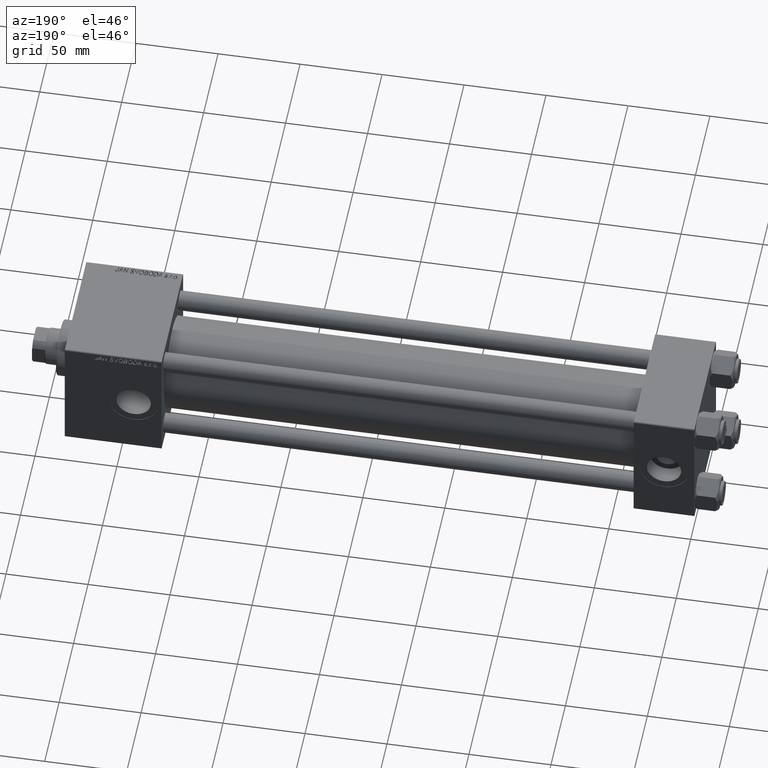
[diagram: clean part render]
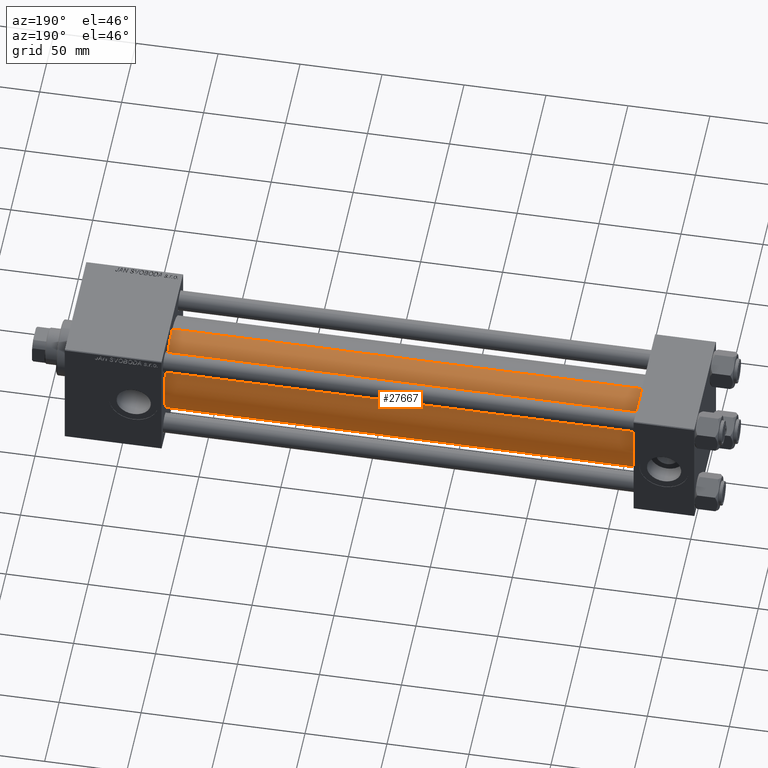
[diagram: same view with one face highlighted and labeled with its STEP entity id]
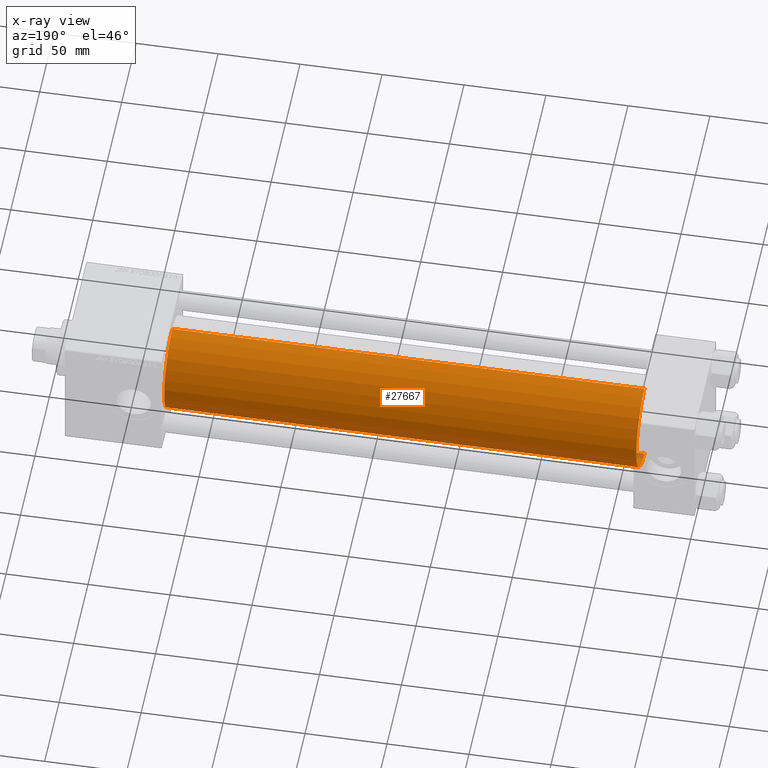
[diagram: x-ray of the same camera — body ghosted, the highlighted face saturated]
A machine part, auxiliary view. The second image highlights one B-rep face of the part: STEP entity #27667.
The next image is the same camera in x-ray: the body ghosted, the highlighted face saturated — about 0% of this face is hidden behind the body in this view.
In plain terms, the highlighted cylindrical surface (partial cylindrical patch) has radius 28 mm, axis along (-1, -0, -0).
Its self-contained STEP definition (entity closure, byte-faithful):
#192 = CARTESIAN_POINT ( 'NONE',  ( 324.9999999999999432, -2.602085213965210642E-15, 28.00000000000000000 ) ) ;
#3681 = DIRECTION ( 'NONE',  ( 1.000000000000000000, -0.000000000000000000, 0.000000000000000000 ) ) ;
#4068 = VECTOR ( 'NONE', #34125, 1000.000000000000000 ) ;
#5253 = EDGE_CURVE ( 'NONE', #39186, #26356, #13824, .T. ) ;
#6474 = CARTESIAN_POINT ( 'NONE',  ( 36.99999999999997868, -2.602085213965210642E-15, 28.00000000000000000 ) ) ;
#7472 = DIRECTION ( 'NONE',  ( -1.000000000000000000, -0.000000000000000000, -0.000000000000000000 ) ) ;
#10523 = AXIS2_PLACEMENT_3D ( 'NONE', #31219, #15905, #10643 ) ;
#10643 = DIRECTION ( 'NONE',  ( 0.000000000000000000, 0.000000000000000000, 1.000000000000000000 ) ) ;
#11323 = VERTEX_POINT ( 'NONE', #14427 ) ;
#12805 = VERTEX_POINT ( 'NONE', #25943 ) ;
#13437 = CARTESIAN_POINT ( 'NONE',  ( 324.9999999999999432, -2.602085213965210642E-15, 0.000000000000000000 ) ) ;
#13824 = LINE ( 'NONE', #192, #4068 ) ;
#14427 = CARTESIAN_POINT ( 'NONE',  ( 36.99999999999997868, 8.269258236473784371E-16, -28.00000000000000000 ) ) ;
#14608 = EDGE_LOOP ( 'NONE', ( #22294, #34877, #49073, #36347 ) ) ;
#14778 = AXIS2_PLACEMENT_3D ( 'NONE', #13437, #40872, #41137 ) ;
#15715 = VECTOR ( 'NONE', #7472, 1000.000000000000000 ) ;
#15905 = DIRECTION ( 'NONE',  ( -1.000000000000000000, -0.000000000000000000, -0.000000000000000000 ) ) ;
#22294 = ORIENTED_EDGE ( 'NONE', *, *, #35230, .F. ) ;
#25943 = CARTESIAN_POINT ( 'NONE',  ( 324.9999999999999432, 8.269258236473784371E-16, -28.00000000000000000 ) ) ;
#26356 = VERTEX_POINT ( 'NONE', #6474 ) ;
#27667 = ADVANCED_FACE ( 'NONE', ( #35422 ), #30956, .T. ) ;
#30956 = CYLINDRICAL_SURFACE ( 'NONE', #10523, 28.00000000000000000 ) ;
#31219 = CARTESIAN_POINT ( 'NONE',  ( 324.9999999999999432, -2.602085213965210642E-15, 0.000000000000000000 ) ) ;
#31753 = CARTESIAN_POINT ( 'NONE',  ( 324.9999999999999432, -2.602085213965210642E-15, 28.00000000000000000 ) ) ;
#34125 = DIRECTION ( 'NONE',  ( -1.000000000000000000, -0.000000000000000000, -0.000000000000000000 ) ) ;
#34877 = ORIENTED_EDGE ( 'NONE', *, *, #37901, .T. ) ;
#35230 = EDGE_CURVE ( 'NONE', #12805, #39186, #43430, .T. ) ;
#35422 = FACE_OUTER_BOUND ( 'NONE', #14608, .T. ) ;
#35969 = CARTESIAN_POINT ( 'NONE',  ( 324.9999999999999432, 8.269258236473784371E-16, -28.00000000000000000 ) ) ;
#35970 = AXIS2_PLACEMENT_3D ( 'NONE', #47746, #3681, #43793 ) ;
#36347 = ORIENTED_EDGE ( 'NONE', *, *, #5253, .F. ) ;
#37901 = EDGE_CURVE ( 'NONE', #12805, #11323, #47595, .T. ) ;
#39186 = VERTEX_POINT ( 'NONE', #31753 ) ;
#39510 = EDGE_CURVE ( 'NONE', #11323, #26356, #51993, .T. ) ;
#40872 = DIRECTION ( 'NONE',  ( 1.000000000000000000, 0.000000000000000000, 0.000000000000000000 ) ) ;
#41137 = DIRECTION ( 'NONE',  ( 0.000000000000000000, 0.000000000000000000, -1.000000000000000000 ) ) ;
#43430 = CIRCLE ( 'NONE', #14778, 28.00000000000000000 ) ;
#43793 = DIRECTION ( 'NONE',  ( 0.000000000000000000, 0.000000000000000000, 1.000000000000000000 ) ) ;
#47595 = LINE ( 'NONE', #35969, #15715 ) ;
#47746 = CARTESIAN_POINT ( 'NONE',  ( 36.99999999999997868, -2.602085213965210642E-15, 0.000000000000000000 ) ) ;
#49073 = ORIENTED_EDGE ( 'NONE', *, *, #39510, .T. ) ;
#51993 = CIRCLE ( 'NONE', #35970, 28.00000000000000000 ) ;